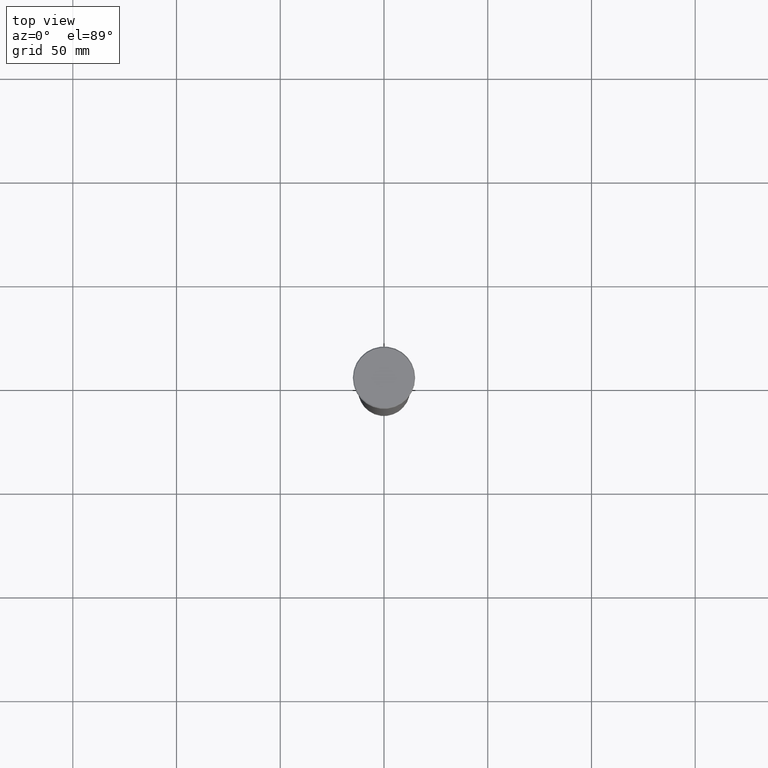
[diagram: clean part render]
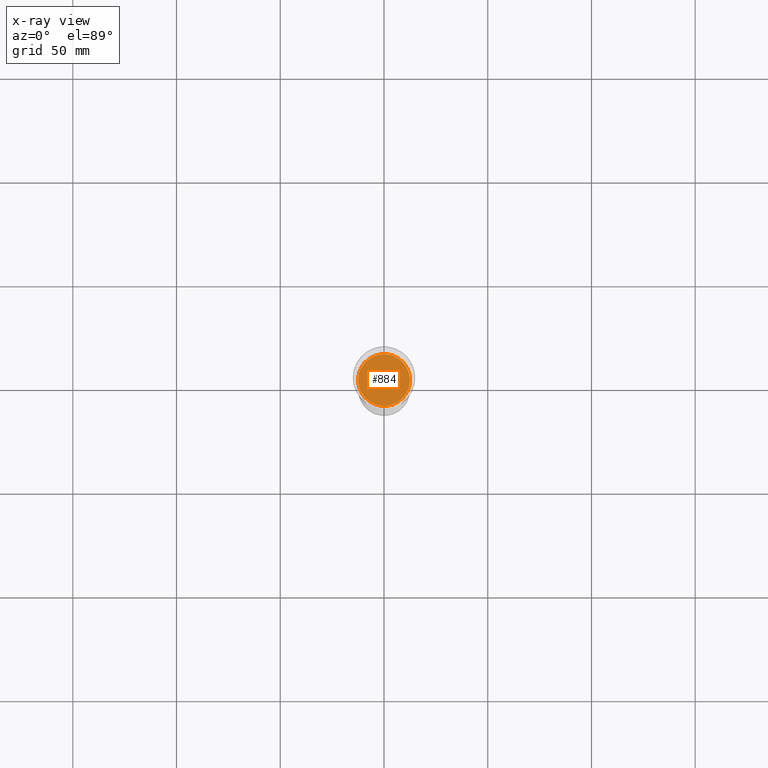
[diagram: x-ray — body ghosted, one internal face saturated and labeled with its STEP entity id]
A machine part, top view, then the same camera in x-ray: the body is ghosted and one INTERNAL B-rep face — a face not visible from any outside direction — is saturated and labeled: STEP entity #884.
In plain terms, the highlighted planar face has unit normal (0, 0, -1).
Its self-contained STEP definition (entity closure, byte-faithful):
#124 = CARTESIAN_POINT ( 'NONE',  ( -12.50000000000000000, 1.530808498934191521E-15, -70.00000000000000000 ) ) ;
#143 = EDGE_CURVE ( 'NONE', #994, #989, #1011, .T. ) ;
#174 = EDGE_CURVE ( 'NONE', #989, #994, #302, .T. ) ;
#186 = EDGE_LOOP ( 'NONE', ( #719, #534 ) ) ;
#302 = CIRCLE ( 'NONE', #808, 12.50000000000000000 ) ;
#332 = DIRECTION ( 'NONE',  ( -1.000000000000000000, 0.000000000000000000, -0.000000000000000000 ) ) ;
#370 = AXIS2_PLACEMENT_3D ( 'NONE', #995, #944, #1031 ) ;
#437 = PLANE ( 'NONE',  #754 ) ;
#472 = DIRECTION ( 'NONE',  ( -0.000000000000000000, -0.000000000000000000, 1.000000000000000000 ) ) ;
#534 = ORIENTED_EDGE ( 'NONE', *, *, #143, .T. ) ;
#576 = CARTESIAN_POINT ( 'NONE',  ( 0.000000000000000000, 1.734723475976807094E-15, -70.00000000000000000 ) ) ;
#719 = ORIENTED_EDGE ( 'NONE', *, *, #174, .T. ) ;
#754 = AXIS2_PLACEMENT_3D ( 'NONE', #576, #827, #332 ) ;
#760 = CARTESIAN_POINT ( 'NONE',  ( 0.000000000000000000, 0.000000000000000000, -70.00000000000000000 ) ) ;
#794 = DIRECTION ( 'NONE',  ( 1.000000000000000000, 0.000000000000000000, 0.000000000000000000 ) ) ;
#808 = AXIS2_PLACEMENT_3D ( 'NONE', #760, #472, #794 ) ;
#827 = DIRECTION ( 'NONE',  ( 0.000000000000000000, 0.000000000000000000, -1.000000000000000000 ) ) ;
#884 = ADVANCED_FACE ( 'NONE', ( #975 ), #437, .F. ) ;
#944 = DIRECTION ( 'NONE',  ( -0.000000000000000000, -0.000000000000000000, 1.000000000000000000 ) ) ;
#975 = FACE_OUTER_BOUND ( 'NONE', #186, .T. ) ;
#989 = VERTEX_POINT ( 'NONE', #991 ) ;
#991 = CARTESIAN_POINT ( 'NONE',  ( 12.50000000000000000, 0.000000000000000000, -70.00000000000000000 ) ) ;
#994 = VERTEX_POINT ( 'NONE', #124 ) ;
#995 = CARTESIAN_POINT ( 'NONE',  ( 0.000000000000000000, 0.000000000000000000, -70.00000000000000000 ) ) ;
#1011 = CIRCLE ( 'NONE', #370, 12.50000000000000000 ) ;
#1031 = DIRECTION ( 'NONE',  ( 1.000000000000000000, 0.000000000000000000, 0.000000000000000000 ) ) ;